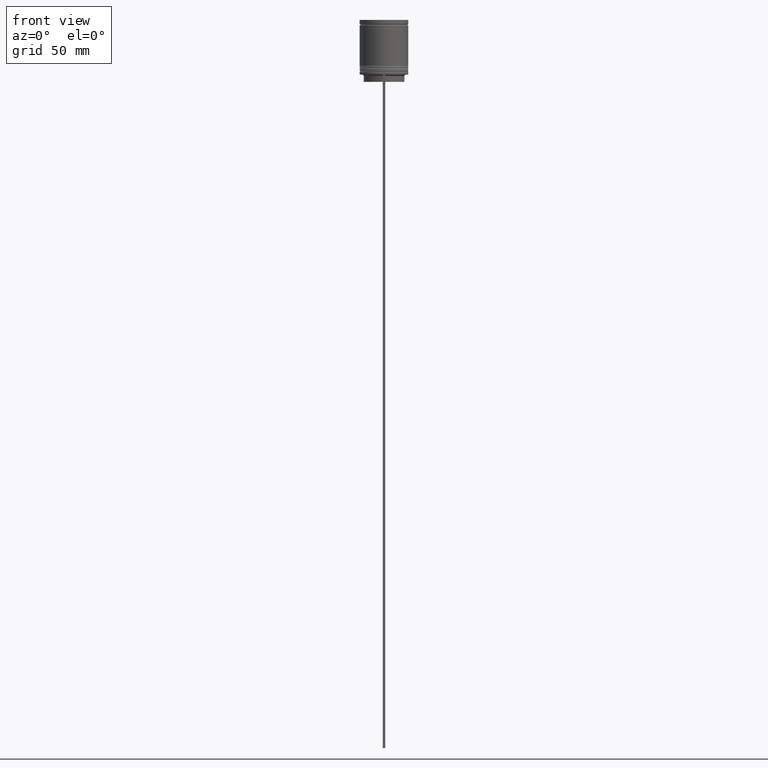
[diagram: clean part render]
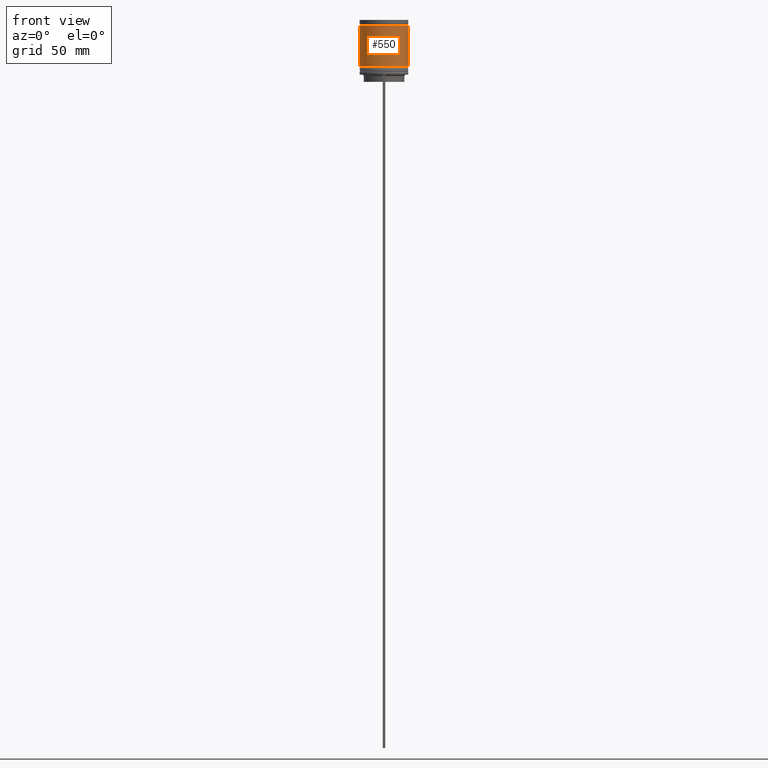
[diagram: same view with one face highlighted and labeled with its STEP entity id]
A machine part, front view. The second image highlights one B-rep face of the part: STEP entity #550.
In plain terms, the highlighted cylindrical surface (edge-blend (fillet) strip) has radius 10 mm, axis along (-0, -0, 1).
Its self-contained STEP definition (entity closure, byte-faithful):
#19 = CARTESIAN_POINT ( 'NONE',  ( -10.00000000000000355, 1.224646799147353651E-15, -19.00000000000000000 ) ) ;
#136 = CIRCLE ( 'NONE', #1810, 9.999999999999996447 ) ;
#240 = VERTEX_POINT ( 'NONE', #19 ) ;
#291 = CARTESIAN_POINT ( 'NONE',  ( 10.00000000000000178, 0.000000000000000000, -19.00000000000000000 ) ) ;
#299 = CIRCLE ( 'NONE', #1477, 10.00000000000000178 ) ;
#418 = CARTESIAN_POINT ( 'NONE',  ( 0.000000000000000000, 0.000000000000000000, 0.000000000000000000 ) ) ;
#427 = CARTESIAN_POINT ( 'NONE',  ( 0.000000000000000000, 0.000000000000000000, -19.00000000000000000 ) ) ;
#497 = EDGE_CURVE ( 'NONE', #858, #639, #136, .T. ) ;
#520 = DIRECTION ( 'NONE',  ( -0.000000000000000000, -0.000000000000000000, 1.000000000000000000 ) ) ;
#533 = EDGE_CURVE ( 'NONE', #240, #1086, #299, .T. ) ;
#550 = ADVANCED_FACE ( 'NONE', ( #1353 ), #1362, .T. ) ;
#564 = DIRECTION ( 'NONE',  ( -0.000000000000000000, -0.000000000000000000, 1.000000000000000000 ) ) ;
#571 = VECTOR ( 'NONE', #520, 1000.000000000000000 ) ;
#620 = ORIENTED_EDGE ( 'NONE', *, *, #533, .T. ) ;
#639 = VERTEX_POINT ( 'NONE', #960 ) ;
#719 = CARTESIAN_POINT ( 'NONE',  ( 0.000000000000000000, 0.000000000000000000, -2.199999999999995293 ) ) ;
#736 = AXIS2_PLACEMENT_3D ( 'NONE', #418, #1697, #1873 ) ;
#825 = EDGE_CURVE ( 'NONE', #1086, #639, #1938, .T. ) ;
#841 = CARTESIAN_POINT ( 'NONE',  ( -9.999999999999996447, 1.224646799147352862E-15, -2.199999999999995293 ) ) ;
#858 = VERTEX_POINT ( 'NONE', #841 ) ;
#960 = CARTESIAN_POINT ( 'NONE',  ( 9.999999999999996447, 0.000000000000000000, -2.199999999999995293 ) ) ;
#1008 = EDGE_LOOP ( 'NONE', ( #2071, #620, #1045, #1657 ) ) ;
#1037 = DIRECTION ( 'NONE',  ( 1.000000000000000000, 0.000000000000000000, 0.000000000000000000 ) ) ;
#1038 = VECTOR ( 'NONE', #564, 1000.000000000000000 ) ;
#1045 = ORIENTED_EDGE ( 'NONE', *, *, #825, .T. ) ;
#1086 = VERTEX_POINT ( 'NONE', #291 ) ;
#1330 = LINE ( 'NONE', #1681, #1038 ) ;
#1353 = FACE_OUTER_BOUND ( 'NONE', #1008, .T. ) ;
#1362 = CYLINDRICAL_SURFACE ( 'NONE', #736, 9.999999999999998224 ) ;
#1477 = AXIS2_PLACEMENT_3D ( 'NONE', #427, #1857, #1560 ) ;
#1535 = DIRECTION ( 'NONE',  ( -0.000000000000000000, -0.000000000000000000, 1.000000000000000000 ) ) ;
#1560 = DIRECTION ( 'NONE',  ( 1.000000000000000000, 0.000000000000000000, 0.000000000000000000 ) ) ;
#1657 = ORIENTED_EDGE ( 'NONE', *, *, #497, .F. ) ;
#1681 = CARTESIAN_POINT ( 'NONE',  ( -9.999999999999998224, 1.224646799147353059E-15, 0.000000000000000000 ) ) ;
#1697 = DIRECTION ( 'NONE',  ( -0.000000000000000000, -0.000000000000000000, 1.000000000000000000 ) ) ;
#1793 = EDGE_CURVE ( 'NONE', #240, #858, #1330, .T. ) ;
#1810 = AXIS2_PLACEMENT_3D ( 'NONE', #719, #1535, #1037 ) ;
#1857 = DIRECTION ( 'NONE',  ( -0.000000000000000000, -0.000000000000000000, 1.000000000000000000 ) ) ;
#1873 = DIRECTION ( 'NONE',  ( 1.000000000000000000, 0.000000000000000000, 0.000000000000000000 ) ) ;
#1938 = LINE ( 'NONE', #1980, #571 ) ;
#1980 = CARTESIAN_POINT ( 'NONE',  ( 9.999999999999998224, 0.000000000000000000, 0.000000000000000000 ) ) ;
#2071 = ORIENTED_EDGE ( 'NONE', *, *, #1793, .F. ) ;